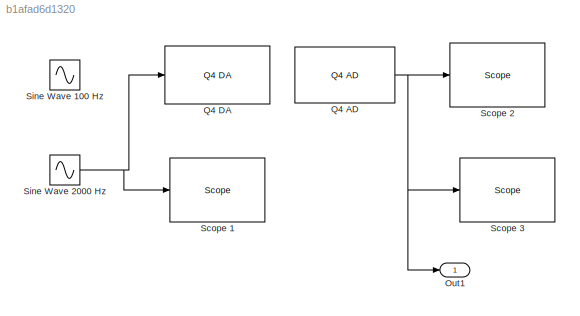
MODEL slx_b1afad6d1320
KIND model
CONFIG AbsTol = auto
CONFIG EnableMultiTasking = on
CONFIG FixedStep = 0.0001
CONFIG MaxStep = auto
CONFIG MinStep = auto
CONFIG RelTol = 1e-3
CONFIG SampleTimeConstraint = Unconstrained
CONFIG Solver = FixedStepAuto
CONFIG SolverName = FixedStepAuto
CONFIG StartTime = 0.0
CONFIG StopTime = inf
BLOCK [Outport] Out1
  IconDisplay = Port number
BLOCK [Reference] Q4 AD  REF=xpcquanserlib/A//D/Q4 AD
  Ports = [0, 1]
  SourceBlock = xpcquanserlib/A//D/Q4 AD
  SourceProductBaseCode = XP
  SourceProductName = Simulink Real-Time
  SourceType = quanser_q4_ad
BLOCK [Reference] Q4 DA   REF=xpcquanserlib/D//A/Q4 DA 
  Ports = [1]
  SourceBlock = xpcquanserlib/D//A/Q4 DA
  SourceProductBaseCode = XP
  SourceProductName = Simulink Real-Time
  SourceType = quanser_q4_da
BLOCK [Reference] Scope 1  REF=slrtlib/Displays and
Logging/Scope 
  Ports = [1]
  SourceBlock = slrtlib/Displays and\nLogging/Scope
  SourceProductBaseCode = XP
  SourceProductName = Simulink Real-Time
  SourceType = xpcscopeblock
BLOCK [Reference] Scope 2  REF=slrtlib/Displays and
Logging/Scope 
  Ports = [1]
  SourceBlock = slrtlib/Displays and\nLogging/Scope
  SourceProductBaseCode = XP
  SourceProductName = Simulink Real-Time
  SourceType = xpcscopeblock
BLOCK [Reference] Scope 3  REF=slrtlib/Displays and
Logging/Scope 
  Ports = [1]
  SourceBlock = slrtlib/Displays and\nLogging/Scope
  SourceProductBaseCode = XP
  SourceProductName = Simulink Real-Time
  SourceType = xpcscopeblock
BLOCK [Sin] Sine Wave 100 Hz
  Frequency = 628.32
  Ports = [0, 1]
  SampleTime = 0
BLOCK [Sin] Sine Wave 2000 Hz
  Frequency = 12566.4
  Ports = [0, 1]
  SampleTime = 0
NET Q4 AD:1 -> Out1:1, Scope 2:1, Scope 3:1
NET Sine Wave 2000 Hz:1 -> Q4 DA :1, Scope 1:1
note: NET lines group one-source signal fan-out (src -> all destinations, sorted); 1:1 wires keep LINE
